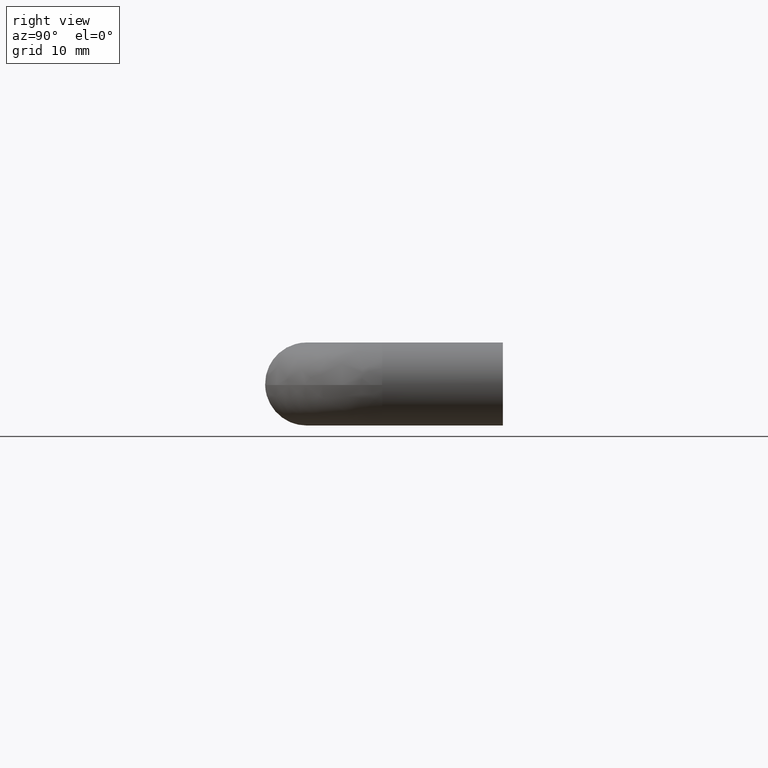
[diagram: clean part render]
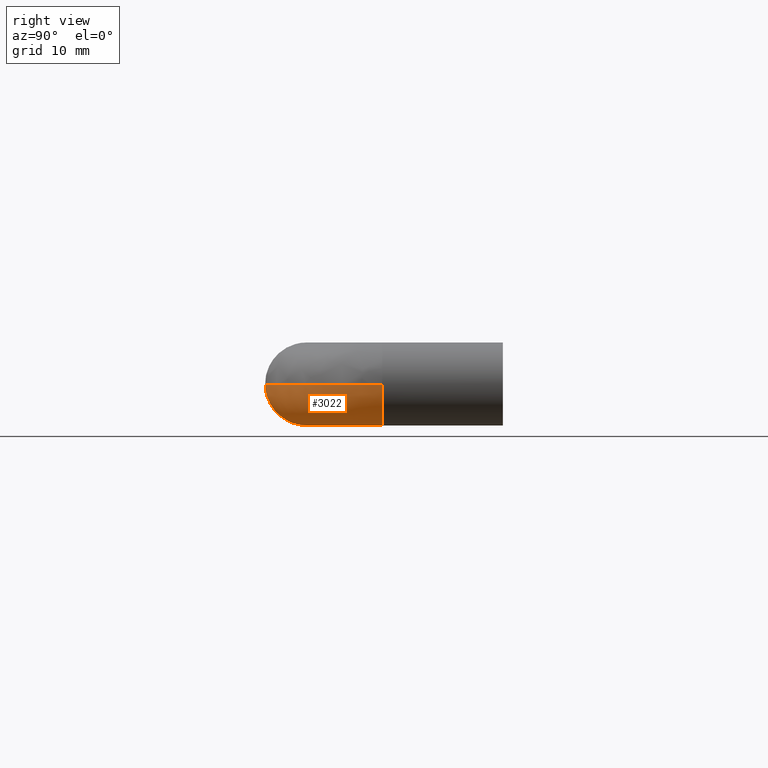
[diagram: same view with one face highlighted and labeled with its STEP entity id]
A machine part, right view. The second image highlights one B-rep face of the part: STEP entity #3022.
In plain terms, the highlighted face is a freeform B-spline surface patch.
Its self-contained STEP definition (entity closure, byte-faithful):
#2083=CARTESIAN_POINT('',(85.498263041054457,-15.999999999981890,-0.138215525085154));
#2084=VERTEX_POINT('',#2083);
#2100=CARTESIAN_POINT('',(80.0,-15.999999999971200,-5.500000000000000));
#2101=VERTEX_POINT('',#2100);
#2102=CARTESIAN_POINT('',(80.0,-15.999999999971200,-5.500000000000000));
#2103=CARTESIAN_POINT('',(85.363478318707109,-15.999999999971205,-5.500000000000001));
#2104=CARTESIAN_POINT('',(85.498263041054457,-15.999999999981890,-0.138215525085154));
#2112=(BOUNDED_CURVE()B_SPLINE_CURVE(2,(#2102,#2103,#2104),.UNSPECIFIED.,.F.,.U.)B_SPLINE_CURVE_WITH_KNOTS((3,3),(0.0,0.245579891760464),.UNSPECIFIED.)CURVE()GEOMETRIC_REPRESENTATION_ITEM()RATIONAL_B_SPLINE_CURVE((1.0,0.712285260105674,0.989826157660457))REPRESENTATION_ITEM(''));
#2113=EDGE_CURVE('',#2101,#2084,#2112,.T.);
#2115=CARTESIAN_POINT('',(79.861784474649951,-16.000000000414630,-5.498263041047800));
#2116=VERTEX_POINT('',#2115);
#2117=CARTESIAN_POINT('',(79.861784474649951,-16.000000000414637,-5.498263041047800));
#2118=CARTESIAN_POINT('',(79.930881322909542,-15.999999999971202,-5.500000000000001));
#2119=CARTESIAN_POINT('',(80.0,-15.999999999971200,-5.500000000000000));
#2127=(BOUNDED_CURVE()B_SPLINE_CURVE(2,(#2117,#2118,#2119),.UNSPECIFIED.,.F.,.U.)B_SPLINE_CURVE_WITH_KNOTS((3,3),(0.995579891743605,1.0),.UNSPECIFIED.)CURVE()GEOMETRIC_REPRESENTATION_ITEM()RATIONAL_B_SPLINE_CURVE((0.989826157622350,0.994821521061122,1.0))REPRESENTATION_ITEM(''));
#2128=EDGE_CURVE('',#2116,#2101,#2127,.T.);
#2286=CARTESIAN_POINT('',(70.000000000080860,-31.498263041026028,-0.138215525071287));
#2287=VERTEX_POINT('',#2286);
#2368=CARTESIAN_POINT('',(70.000000000679393,-25.861784474253859,-5.498263041038566));
#2369=VERTEX_POINT('',#2368);
#2385=CARTESIAN_POINT('',(70.0,-25.999999999971251,-5.500000000000000));
#2386=VERTEX_POINT('',#2385);
#2387=CARTESIAN_POINT('',(70.000000000679393,-25.861784474253863,-5.498263041038566));
#2388=CARTESIAN_POINT('',(69.999999999999986,-25.930881322513290,-5.500000000000000));
#2389=CARTESIAN_POINT('',(70.0,-25.999999999971251,-5.500000000000000));
#2397=(BOUNDED_CURVE()B_SPLINE_CURVE(2,(#2387,#2388,#2389),.UNSPECIFIED.,.F.,.U.)B_SPLINE_CURVE_WITH_KNOTS((3,3),(0.995579891720225,1.0),.UNSPECIFIED.)CURVE()GEOMETRIC_REPRESENTATION_ITEM()RATIONAL_B_SPLINE_CURVE((0.989826157569505,0.994821521033731,1.0))REPRESENTATION_ITEM(''));
#2398=EDGE_CURVE('',#2369,#2386,#2397,.T.);
#2400=CARTESIAN_POINT('',(70.0,-25.999999999971251,-5.500000000000000));
#2401=CARTESIAN_POINT('',(70.000000000000014,-31.363478318705393,-5.500000000000000));
#2402=CARTESIAN_POINT('',(70.000000000080860,-31.498263041026028,-0.138215525071287));
#2410=(BOUNDED_CURVE()B_SPLINE_CURVE(2,(#2400,#2401,#2402),.UNSPECIFIED.,.F.,.U.)B_SPLINE_CURVE_WITH_KNOTS((3,3),(0.0,0.245579891761347),.UNSPECIFIED.)CURVE()GEOMETRIC_REPRESENTATION_ITEM()RATIONAL_B_SPLINE_CURVE((1.0,0.712285260104640,0.989826157662452))REPRESENTATION_ITEM(''));
#2411=EDGE_CURVE('',#2386,#2287,#2410,.T.);
#2958=CARTESIAN_POINT('',(70.000000000679393,-25.861784474253863,-5.498263041038566));
#2959=CARTESIAN_POINT('',(79.861784474174769,-25.861784473674032,-5.498263041058149));
#2960=CARTESIAN_POINT('',(79.861784474649951,-16.000000000414641,-5.498263041047800));
#2968=(BOUNDED_CURVE()B_SPLINE_CURVE(2,(#2958,#2959,#2960),.UNSPECIFIED.,.F.,.U.)B_SPLINE_CURVE_WITH_KNOTS((3,3),(-1.733067862589971,-0.253787686536004),.UNSPECIFIED.)CURVE()GEOMETRIC_REPRESENTATION_ITEM()RATIONAL_B_SPLINE_CURVE((0.889551170275522,0.630646846361811,0.894193516967318))REPRESENTATION_ITEM(''));
#2969=EDGE_CURVE('',#2369,#2116,#2968,.T.);
#2975=CARTESIAN_POINT('',(70.000000000080860,-31.498263041026036,-0.138215525071287));
#2976=CARTESIAN_POINT('',(85.498263041036793,-31.498263040867638,-0.138215524938356));
#2977=CARTESIAN_POINT('',(85.498263041054457,-15.999999999981888,-0.138215525085154));
#2985=(BOUNDED_CURVE()B_SPLINE_CURVE(2,(#2975,#2976,#2977),.UNSPECIFIED.,.F.,.U.)B_SPLINE_CURVE_WITH_KNOTS((3,3),(-1.733067862722835,-0.253787686443136),.UNSPECIFIED.)CURVE()GEOMETRIC_REPRESENTATION_ITEM()RATIONAL_B_SPLINE_CURVE((0.889551170322030,0.630646846321886,0.894193517000408))REPRESENTATION_ITEM(''));
#2986=EDGE_CURVE('',#2287,#2084,#2985,.T.);
#2991=CARTESIAN_POINT('',(69.315185364541279,-25.797856627295719,-5.497256899410673));
#2992=CARTESIAN_POINT('',(80.581332236902412,-26.585296427333621,-5.497256899410674));
#2993=CARTESIAN_POINT('',(79.798112450898458,-15.318855394109827,-5.497256899410674));
#2994=CARTESIAN_POINT('',(69.313792126583323,-25.817790117400715,-5.497759210641330));
#2995=CARTESIAN_POINT('',(80.602859688207801,-26.606831943683666,-5.497759210641328));
#2996=CARTESIAN_POINT('',(79.818046461470004,-15.317469622733755,-5.497759210641330));
#2997=CARTESIAN_POINT('',(68.929032520213724,-31.322665837047261,-5.636478565996502));
#2998=CARTESIAN_POINT('',(86.547927178784462,-32.554126694429662,-5.636478565996502));
#2999=CARTESIAN_POINT('',(85.323065914285408,-14.934772003754780,-5.636478565996505));
#3000=CARTESIAN_POINT('',(68.919361521696345,-31.461031829843005,-0.118801513727391));
#3001=CARTESIAN_POINT('',(86.697357467035161,-32.703612965245746,-0.118801513727391));
#3002=CARTESIAN_POINT('',(85.461435519838886,-14.925152833643162,-0.118801513727391));
#3003=CARTESIAN_POINT('',(68.919327593564319,-31.461517250212339,-0.099444207944230));
#3004=CARTESIAN_POINT('',(86.697881703549086,-32.704137398159645,-0.099444207944230));
#3005=CARTESIAN_POINT('',(85.461920952882622,-14.925119087337348,-0.099444207944230));
#3013=(BOUNDED_SURFACE()B_SPLINE_SURFACE(2,2,((#2991,#2994,#2997,#3000,#3003),(#2992,#2995,#2998,#3001,#3004),(#2993,#2996,#2999,#3002,#3005)),.UNSPECIFIED.,.F.,.F.,.U.)B_SPLINE_SURFACE_WITH_KNOTS((3,3),(3,1,1,3),(0.0,28.245351506752399),(0.0,0.047048500991142,9.159746873199248,9.205317751995329),.UNSPECIFIED.)GEOMETRIC_REPRESENTATION_ITEM()RATIONAL_B_SPLINE_SURFACE(((0.919491750122438,0.918105490879915,0.648218385134922,0.918061953522046,0.919404675406699),(0.605071358329669,0.604159130718320,0.426559975916722,0.604130480968868,0.605014058830766),(0.924613303371439,0.923219322688755,0.651828950402101,0.923175542828551,0.924525743651030)))REPRESENTATION_ITEM('')SURFACE());
#3014=ORIENTED_EDGE('',*,*,#2113,.T.);
#3015=ORIENTED_EDGE('',*,*,#2986,.F.);
#3016=ORIENTED_EDGE('',*,*,#2411,.F.);
#3017=ORIENTED_EDGE('',*,*,#2398,.F.);
#3018=ORIENTED_EDGE('',*,*,#2969,.T.);
#3019=ORIENTED_EDGE('',*,*,#2128,.T.);
#3020=EDGE_LOOP('',(#3014,#3015,#3016,#3017,#3018,#3019));
#3021=FACE_OUTER_BOUND('',#3020,.T.);
#3022=ADVANCED_FACE('',(#3021),#3013,.T.);